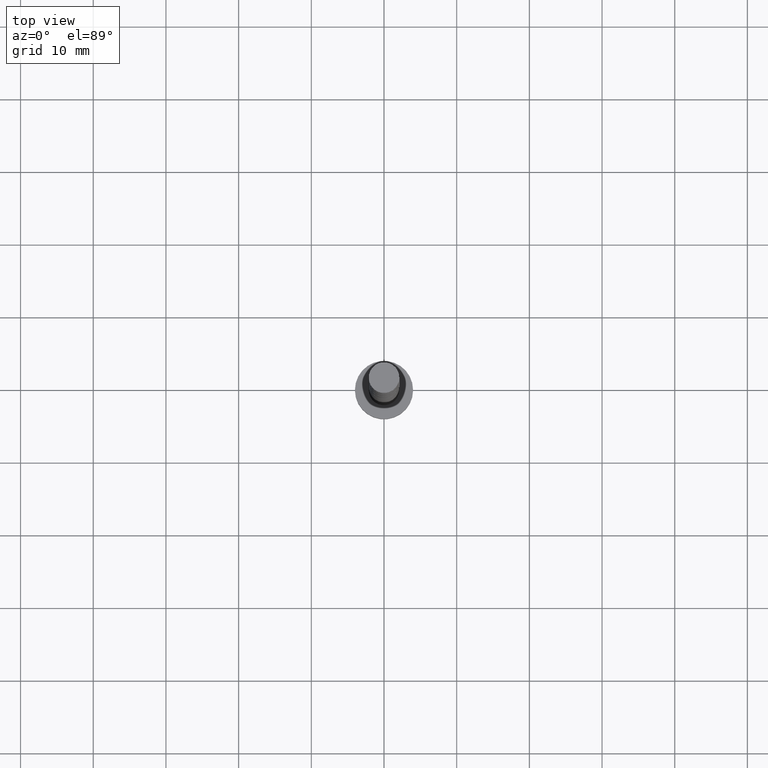
[diagram: clean part render]
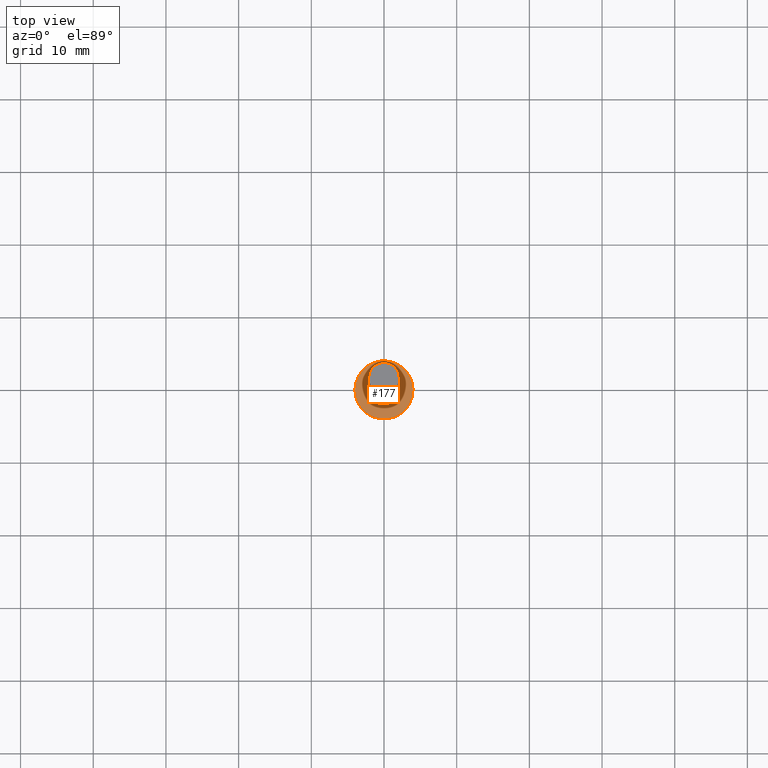
[diagram: same view with one face highlighted and labeled with its STEP entity id]
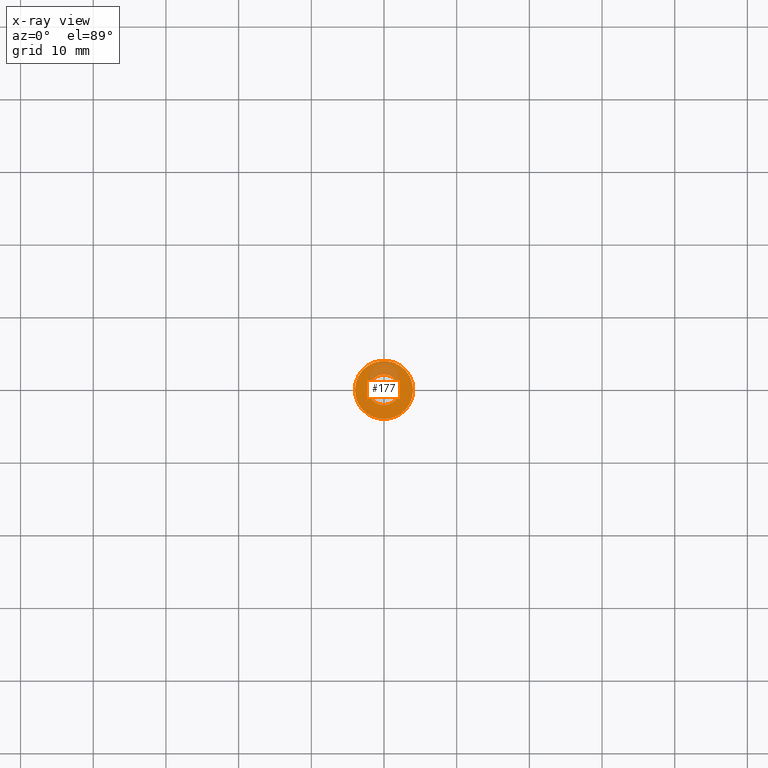
[diagram: x-ray of the same camera — body ghosted, the highlighted face saturated]
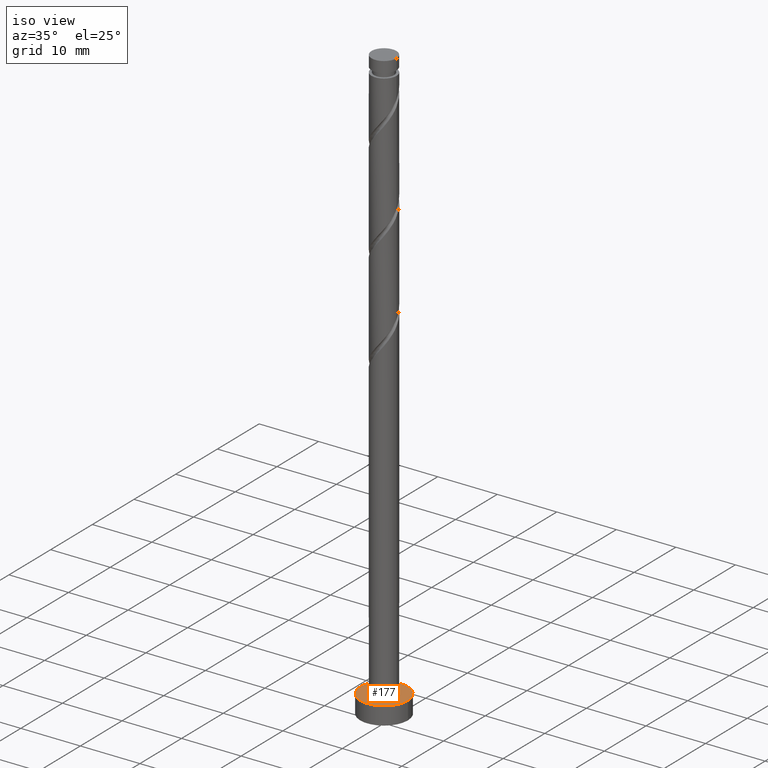
[diagram: same view with one face highlighted and labeled with its STEP entity id]
A machine part, top view. The second image highlights one B-rep face of the part: STEP entity #177.
The next image is the same camera in x-ray: the body ghosted, the highlighted face saturated — about 20% of this face is hidden behind the body in this view.
A second angle (iso view) of the same face is appended — the face is thin or edge-on in the first view.
In plain terms, the highlighted planar face has unit normal (0, 0, 1).
Its self-contained STEP definition (entity closure, byte-faithful):
#76 = CARTESIAN_POINT ( 'NONE',  ( 0.000000000000000000, 0.000000000000000000, 3.000000000000000000 ) ) ;
#112 = CARTESIAN_POINT ( 'NONE',  ( 2.100000000000000089, 2.571758278209441464E-16, 3.000000000000000000 ) ) ;
#116 = VERTEX_POINT ( 'NONE', #1038 ) ;
#177 = ADVANCED_FACE ( 'NONE', ( #1384, #1376 ), #1245, .T. ) ;
#206 = EDGE_CURVE ( 'NONE', #1235, #582, #335, .T. ) ;
#231 = ORIENTED_EDGE ( 'NONE', *, *, #248, .T. ) ;
#237 = DIRECTION ( 'NONE',  ( 0.000000000000000000, 0.000000000000000000, 1.000000000000000000 ) ) ;
#248 = EDGE_CURVE ( 'NONE', #510, #116, #1174, .T. ) ;
#281 = CIRCLE ( 'NONE', #743, 2.100000000000000089 ) ;
#322 = DIRECTION ( 'NONE',  ( 0.000000000000000000, 0.000000000000000000, 1.000000000000000000 ) ) ;
#335 = CIRCLE ( 'NONE', #600, 2.100000000000000089 ) ;
#336 = CARTESIAN_POINT ( 'NONE',  ( 0.000000000000000000, 0.000000000000000000, 3.000000000000000000 ) ) ;
#338 = CARTESIAN_POINT ( 'NONE',  ( 0.000000000000000000, 0.000000000000000000, 3.000000000000000000 ) ) ;
#393 = ORIENTED_EDGE ( 'NONE', *, *, #206, .F. ) ;
#413 = CARTESIAN_POINT ( 'NONE',  ( 4.000000000000000000, 4.898587196589412829E-16, 3.000000000000000000 ) ) ;
#491 = EDGE_LOOP ( 'NONE', ( #500, #231 ) ) ;
#500 = ORIENTED_EDGE ( 'NONE', *, *, #767, .T. ) ;
#510 = VERTEX_POINT ( 'NONE', #413 ) ;
#526 = AXIS2_PLACEMENT_3D ( 'NONE', #684, #1023, #917 ) ;
#564 = EDGE_CURVE ( 'NONE', #582, #1235, #281, .T. ) ;
#582 = VERTEX_POINT ( 'NONE', #112 ) ;
#600 = AXIS2_PLACEMENT_3D ( 'NONE', #1160, #322, #1150 ) ;
#684 = CARTESIAN_POINT ( 'NONE',  ( 0.000000000000000000, 0.000000000000000000, 3.000000000000000000 ) ) ;
#710 = DIRECTION ( 'NONE',  ( 1.000000000000000000, 0.000000000000000000, -0.000000000000000000 ) ) ;
#743 = AXIS2_PLACEMENT_3D ( 'NONE', #336, #1140, #799 ) ;
#767 = EDGE_CURVE ( 'NONE', #116, #510, #920, .T. ) ;
#799 = DIRECTION ( 'NONE',  ( 1.000000000000000000, 0.000000000000000000, 0.000000000000000000 ) ) ;
#822 = AXIS2_PLACEMENT_3D ( 'NONE', #76, #1427, #892 ) ;
#829 = EDGE_LOOP ( 'NONE', ( #393, #1063 ) ) ;
#892 = DIRECTION ( 'NONE',  ( 1.000000000000000000, 0.000000000000000000, 0.000000000000000000 ) ) ;
#917 = DIRECTION ( 'NONE',  ( 1.000000000000000000, 0.000000000000000000, 0.000000000000000000 ) ) ;
#920 = CIRCLE ( 'NONE', #822, 4.000000000000000000 ) ;
#958 = CARTESIAN_POINT ( 'NONE',  ( -2.100000000000000089, 0.000000000000000000, 3.000000000000000000 ) ) ;
#1023 = DIRECTION ( 'NONE',  ( 0.000000000000000000, 0.000000000000000000, 1.000000000000000000 ) ) ;
#1038 = CARTESIAN_POINT ( 'NONE',  ( -4.000000000000000000, 0.000000000000000000, 3.000000000000000000 ) ) ;
#1063 = ORIENTED_EDGE ( 'NONE', *, *, #564, .F. ) ;
#1140 = DIRECTION ( 'NONE',  ( 0.000000000000000000, 0.000000000000000000, 1.000000000000000000 ) ) ;
#1150 = DIRECTION ( 'NONE',  ( 1.000000000000000000, 0.000000000000000000, 0.000000000000000000 ) ) ;
#1160 = CARTESIAN_POINT ( 'NONE',  ( 0.000000000000000000, 0.000000000000000000, 3.000000000000000000 ) ) ;
#1174 = CIRCLE ( 'NONE', #526, 4.000000000000000000 ) ;
#1235 = VERTEX_POINT ( 'NONE', #958 ) ;
#1245 = PLANE ( 'NONE',  #1250 ) ;
#1250 = AXIS2_PLACEMENT_3D ( 'NONE', #338, #237, #710 ) ;
#1376 = FACE_OUTER_BOUND ( 'NONE', #491, .T. ) ;
#1384 = FACE_BOUND ( 'NONE', #829, .T. ) ;
#1427 = DIRECTION ( 'NONE',  ( 0.000000000000000000, 0.000000000000000000, 1.000000000000000000 ) ) ;